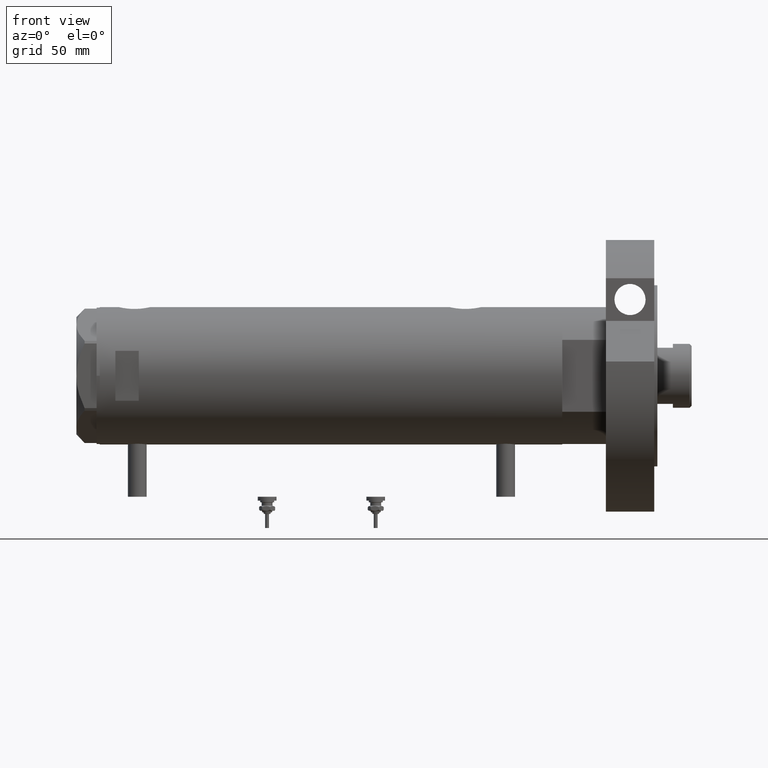
[diagram: clean part render]
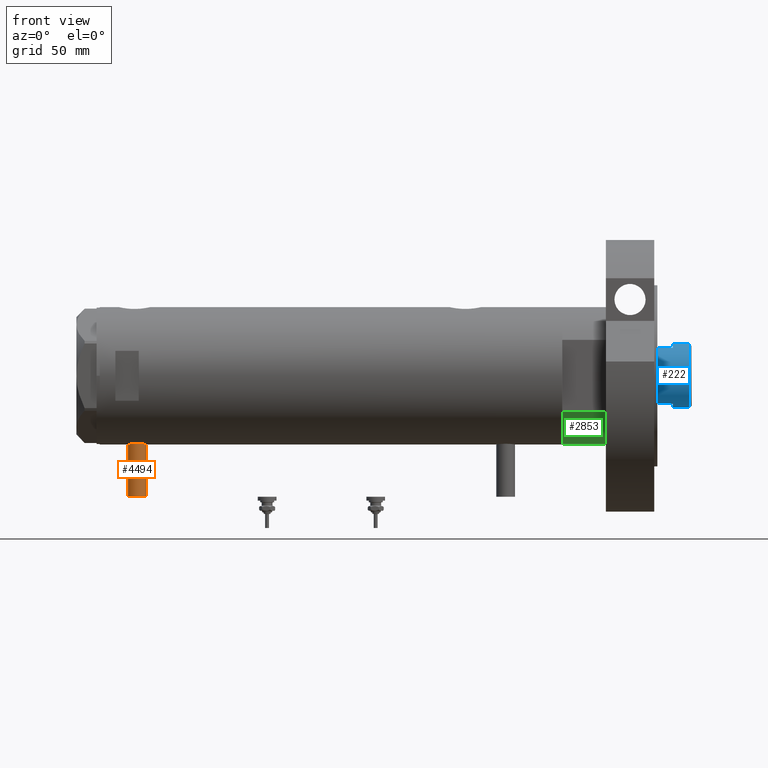
[diagram: same view with three faces highlighted in distinct colors, each labeled with its STEP entity id]
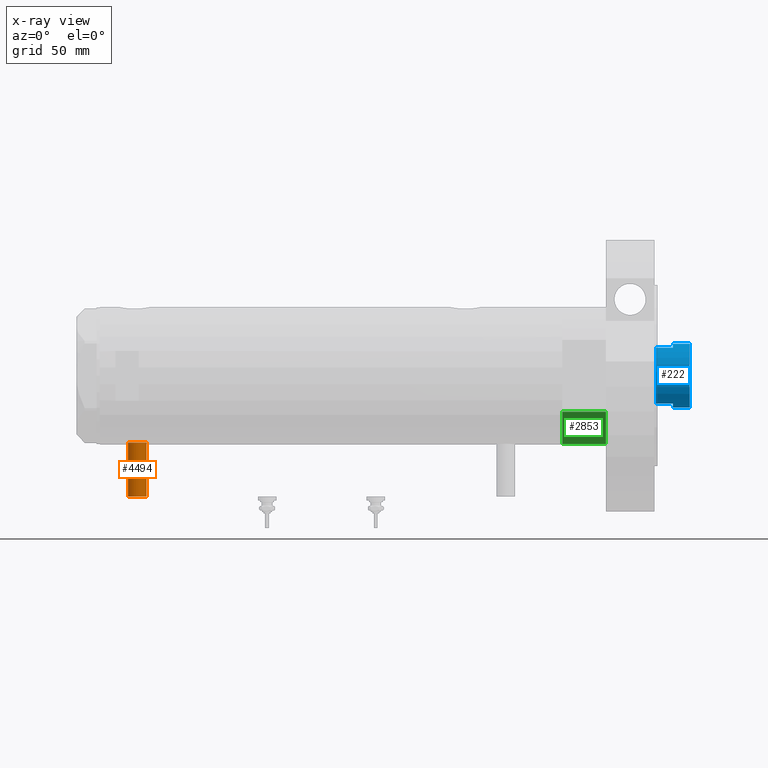
[diagram: x-ray of the same camera — body ghosted, the three highlighted faces saturated]
A machine part, front view with three faces highlighted in distinct colors.
The next image is the same camera in x-ray (body ghosted, the three faces saturated) — at least one of them is partly hidden behind the body in this view.
Their STEP definitions:

[orange] entity #4494 — the highlighted cylindrical surface (edge-blend (fillet) strip) has radius 6 mm, axis along (0, 0, 1).
#251 = AXIS2_PLACEMENT_3D ( 'NONE', #2872, #4598, #4523 ) ;
#655 = CARTESIAN_POINT ( 'NONE',  ( -77.50000000000000000, 0.000000000000000000, 118.1999999999999886 ) ) ;
#823 = DIRECTION ( 'NONE',  ( -1.000000000000000000, 0.000000000000000000, 0.000000000000000000 ) ) ;
#948 = DIRECTION ( 'NONE',  ( 1.000000000000000000, -0.000000000000000000, -0.000000000000000000 ) ) ;
#1014 = DIRECTION ( 'NONE',  ( -1.000000000000000000, 0.000000000000000000, 0.000000000000000000 ) ) ;
#1040 = FACE_OUTER_BOUND ( 'NONE', #3210, .T. ) ;
#1078 = VECTOR ( 'NONE', #948, 1000.000000000000000 ) ;
#1274 = VERTEX_POINT ( 'NONE', #655 ) ;
#1292 = DIRECTION ( 'NONE',  ( 1.000000000000000000, -0.000000000000000000, -0.000000000000000000 ) ) ;
#1332 = VECTOR ( 'NONE', #1292, 1000.000000000000000 ) ;
#1433 = CIRCLE ( 'NONE', #2409, 6.000000000000005329 ) ;
#1808 = CARTESIAN_POINT ( 'NONE',  ( -42.79999999999999716, 0.000000000000000000, 118.1999999999999886 ) ) ;
#2034 = VERTEX_POINT ( 'NONE', #7379 ) ;
#2093 = ORIENTED_EDGE ( 'NONE', *, *, #3212, .F. ) ;
#2404 = CARTESIAN_POINT ( 'NONE',  ( -77.50000000000000000, 0.000000000000000000, 118.1999999999999886 ) ) ;
#2409 = AXIS2_PLACEMENT_3D ( 'NONE', #4845, #823, #5002 ) ;
#2654 = AXIS2_PLACEMENT_3D ( 'NONE', #5124, #1014, #6914 ) ;
#2872 = CARTESIAN_POINT ( 'NONE',  ( -77.50000000000000000, 0.000000000000000000, 124.2000000000000028 ) ) ;
#2900 = EDGE_CURVE ( 'NONE', #6942, #2034, #5452, .T. ) ;
#3210 = EDGE_LOOP ( 'NONE', ( #6368, #2093, #6959, #4965 ) ) ;
#3212 = EDGE_CURVE ( 'NONE', #1274, #3876, #1433, .T. ) ;
#3876 = VERTEX_POINT ( 'NONE', #7083 ) ;
#4166 = EDGE_CURVE ( 'NONE', #3876, #2034, #6886, .T. ) ;
#4460 = CARTESIAN_POINT ( 'NONE',  ( -77.50000000000000000, 7.347880794884138472E-16, 130.2000000000000171 ) ) ;
#4494 = ADVANCED_FACE ( 'NONE', ( #1040 ), #7452, .T. ) ;
#4523 = DIRECTION ( 'NONE',  ( 0.000000000000000000, 0.000000000000000000, -1.000000000000000000 ) ) ;
#4598 = DIRECTION ( 'NONE',  ( 1.000000000000000000, -0.000000000000000000, -0.000000000000000000 ) ) ;
#4845 = CARTESIAN_POINT ( 'NONE',  ( -77.50000000000000000, 0.000000000000000000, 124.2000000000000028 ) ) ;
#4965 = ORIENTED_EDGE ( 'NONE', *, *, #2900, .T. ) ;
#5002 = DIRECTION ( 'NONE',  ( 0.000000000000000000, 0.000000000000000000, 1.000000000000000000 ) ) ;
#5006 = EDGE_CURVE ( 'NONE', #1274, #6942, #5263, .T. ) ;
#5124 = CARTESIAN_POINT ( 'NONE',  ( -42.79999999999999716, 0.000000000000000000, 124.2000000000000028 ) ) ;
#5263 = LINE ( 'NONE', #2404, #1332 ) ;
#5452 = CIRCLE ( 'NONE', #2654, 6.000000000000005329 ) ;
#6368 = ORIENTED_EDGE ( 'NONE', *, *, #4166, .F. ) ;
#6886 = LINE ( 'NONE', #4460, #1078 ) ;
#6914 = DIRECTION ( 'NONE',  ( 0.000000000000000000, 0.000000000000000000, 1.000000000000000000 ) ) ;
#6942 = VERTEX_POINT ( 'NONE', #1808 ) ;
#6959 = ORIENTED_EDGE ( 'NONE', *, *, #5006, .T. ) ;
#7083 = CARTESIAN_POINT ( 'NONE',  ( -77.50000000000000000, 7.347880794884152277E-16, 130.2000000000000171 ) ) ;
#7379 = CARTESIAN_POINT ( 'NONE',  ( -42.79999999999999716, 7.347880794884152277E-16, 130.2000000000000171 ) ) ;
#7452 = CYLINDRICAL_SURFACE ( 'NONE', #251, 6.000000000000019540 ) ;

[blue] entity #222 — the highlighted cylindrical surface (edge-blend (fillet) strip) has radius 20.5 mm, axis along (-1, -0, 0).
#88 = VERTEX_POINT ( 'NONE', #5768 ) ;
#222 = ADVANCED_FACE ( 'NONE', ( #3880 ), #2731, .T. ) ;
#339 = VECTOR ( 'NONE', #5512, 1000.000000000000000 ) ;
#386 = CIRCLE ( 'NONE', #1343, 20.50000000000000355 ) ;
#415 = CARTESIAN_POINT ( 'NONE',  ( -20.50000000000000355, 0.000000000000000000, 341.3000000000000114 ) ) ;
#544 = DIRECTION ( 'NONE',  ( 1.000000000000000000, 0.000000000000000000, 0.000000000000000000 ) ) ;
#777 = DIRECTION ( 'NONE',  ( 1.000000000000000000, 0.000000000000000000, 0.000000000000000000 ) ) ;
#886 = VERTEX_POINT ( 'NONE', #7463 ) ;
#1092 = EDGE_CURVE ( 'NONE', #1879, #886, #2514, .T. ) ;
#1142 = CARTESIAN_POINT ( 'NONE',  ( 20.50000000000000000, 2.510525938252074481E-15, 341.3000000000000114 ) ) ;
#1167 = EDGE_CURVE ( 'NONE', #1879, #6909, #4605, .T. ) ;
#1343 = AXIS2_PLACEMENT_3D ( 'NONE', #4004, #5759, #544 ) ;
#1550 = CIRCLE ( 'NONE', #5431, 20.50000000000000355 ) ;
#1805 = ORIENTED_EDGE ( 'NONE', *, *, #2062, .T. ) ;
#1879 = VERTEX_POINT ( 'NONE', #6219 ) ;
#2013 = EDGE_CURVE ( 'NONE', #6525, #6909, #7297, .T. ) ;
#2015 = ORIENTED_EDGE ( 'NONE', *, *, #2751, .T. ) ;
#2021 = DIRECTION ( 'NONE',  ( 0.000000000000000000, 0.000000000000000000, 1.000000000000000000 ) ) ;
#2062 = EDGE_CURVE ( 'NONE', #6525, #5394, #1550, .T. ) ;
#2082 = DIRECTION ( 'NONE',  ( -0.000000000000000000, -0.000000000000000000, -1.000000000000000000 ) ) ;
#2344 = ORIENTED_EDGE ( 'NONE', *, *, #2013, .F. ) ;
#2514 = LINE ( 'NONE', #3657, #3618 ) ;
#2535 = EDGE_CURVE ( 'NONE', #3021, #3798, #5561, .T. ) ;
#2587 = ORIENTED_EDGE ( 'NONE', *, *, #5945, .T. ) ;
#2731 = CYLINDRICAL_SURFACE ( 'NONE', #7532, 20.50000000000000355 ) ;
#2751 = EDGE_CURVE ( 'NONE', #88, #3021, #6432, .T. ) ;
#2768 = DIRECTION ( 'NONE',  ( -0.000000000000000000, -0.000000000000000000, -1.000000000000000000 ) ) ;
#3021 = VERTEX_POINT ( 'NONE', #6475 ) ;
#3046 = DIRECTION ( 'NONE',  ( 1.000000000000000000, 0.000000000000000000, 0.000000000000000000 ) ) ;
#3217 = DIRECTION ( 'NONE',  ( 0.000000000000000000, 0.000000000000000000, -1.000000000000000000 ) ) ;
#3339 = LINE ( 'NONE', #415, #3788 ) ;
#3618 = VECTOR ( 'NONE', #5532, 1000.000000000000000 ) ;
#3657 = CARTESIAN_POINT ( 'NONE',  ( 17.97852886083843060, -9.849999999999994316, 341.3000000000000114 ) ) ;
#3716 = DIRECTION ( 'NONE',  ( -0.000000000000000000, -0.000000000000000000, -1.000000000000000000 ) ) ;
#3749 = CARTESIAN_POINT ( 'NONE',  ( 20.50000000000000355, 2.510525938252074481E-15, 341.3000000000000114 ) ) ;
#3788 = VECTOR ( 'NONE', #2082, 1000.000000000000000 ) ;
#3798 = VERTEX_POINT ( 'NONE', #5216 ) ;
#3872 = VECTOR ( 'NONE', #2768, 1000.000000000000000 ) ;
#3880 = FACE_OUTER_BOUND ( 'NONE', #7312, .T. ) ;
#3944 = DIRECTION ( 'NONE',  ( 0.000000000000000000, 0.000000000000000000, 1.000000000000000000 ) ) ;
#4004 = CARTESIAN_POINT ( 'NONE',  ( 0.000000000000000000, 0.000000000000000000, 330.2999999999999545 ) ) ;
#4052 = ORIENTED_EDGE ( 'NONE', *, *, #1167, .T. ) ;
#4483 = AXIS2_PLACEMENT_3D ( 'NONE', #7280, #2021, #777 ) ;
#4511 = CARTESIAN_POINT ( 'NONE',  ( 0.000000000000000000, 0.000000000000000000, 341.3000000000000114 ) ) ;
#4605 = CIRCLE ( 'NONE', #4483, 20.50000000000000000 ) ;
#5041 = CARTESIAN_POINT ( 'NONE',  ( 0.000000000000000000, 0.000000000000000000, 351.8999999999999773 ) ) ;
#5046 = CARTESIAN_POINT ( 'NONE',  ( 0.000000000000000000, 0.000000000000000000, 341.3000000000000114 ) ) ;
#5216 = CARTESIAN_POINT ( 'NONE',  ( -17.97852886083842350, -9.850000000000029843, 330.2999999999999545 ) ) ;
#5386 = ORIENTED_EDGE ( 'NONE', *, *, #2535, .T. ) ;
#5394 = VERTEX_POINT ( 'NONE', #6847 ) ;
#5411 = ORIENTED_EDGE ( 'NONE', *, *, #6154, .T. ) ;
#5431 = AXIS2_PLACEMENT_3D ( 'NONE', #5041, #3217, #5552 ) ;
#5512 = DIRECTION ( 'NONE',  ( -0.000000000000000000, -0.000000000000000000, -1.000000000000000000 ) ) ;
#5532 = DIRECTION ( 'NONE',  ( -0.000000000000000000, -0.000000000000000000, -1.000000000000000000 ) ) ;
#5552 = DIRECTION ( 'NONE',  ( 1.000000000000000000, 0.000000000000000000, 0.000000000000000000 ) ) ;
#5561 = LINE ( 'NONE', #5678, #3872 ) ;
#5678 = CARTESIAN_POINT ( 'NONE',  ( -17.97852886083842350, -9.850000000000001421, 341.3000000000000114 ) ) ;
#5759 = DIRECTION ( 'NONE',  ( 0.000000000000000000, 0.000000000000000000, 1.000000000000000000 ) ) ;
#5768 = CARTESIAN_POINT ( 'NONE',  ( -20.50000000000000000, 0.000000000000000000, 341.3000000000000114 ) ) ;
#5945 = EDGE_CURVE ( 'NONE', #3798, #886, #386, .T. ) ;
#6104 = ORIENTED_EDGE ( 'NONE', *, *, #1092, .F. ) ;
#6154 = EDGE_CURVE ( 'NONE', #5394, #88, #3339, .T. ) ;
#6219 = CARTESIAN_POINT ( 'NONE',  ( 17.97852886083843060, -9.849999999999994316, 341.3000000000000114 ) ) ;
#6432 = CIRCLE ( 'NONE', #7427, 20.50000000000000000 ) ;
#6475 = CARTESIAN_POINT ( 'NONE',  ( -17.97852886083842705, -9.849999999999996092, 341.3000000000000114 ) ) ;
#6525 = VERTEX_POINT ( 'NONE', #7357 ) ;
#6847 = CARTESIAN_POINT ( 'NONE',  ( -20.50000000000000355, 0.000000000000000000, 351.8999999999999773 ) ) ;
#6909 = VERTEX_POINT ( 'NONE', #1142 ) ;
#7267 = DIRECTION ( 'NONE',  ( -1.000000000000000000, 0.000000000000000000, 0.000000000000000000 ) ) ;
#7280 = CARTESIAN_POINT ( 'NONE',  ( 0.000000000000000000, 0.000000000000000000, 341.3000000000000114 ) ) ;
#7297 = LINE ( 'NONE', #3749, #339 ) ;
#7312 = EDGE_LOOP ( 'NONE', ( #2344, #1805, #5411, #2015, #5386, #2587, #6104, #4052 ) ) ;
#7357 = CARTESIAN_POINT ( 'NONE',  ( 20.50000000000000355, 2.510525938252074481E-15, 351.8999999999999773 ) ) ;
#7427 = AXIS2_PLACEMENT_3D ( 'NONE', #4511, #3944, #3046 ) ;
#7463 = CARTESIAN_POINT ( 'NONE',  ( 17.97852886083843060, -9.850000000000019185, 330.2999999999999545 ) ) ;
#7532 = AXIS2_PLACEMENT_3D ( 'NONE', #5046, #3716, #7267 ) ;

[green] entity #2853 — the highlighted cylindrical surface (partial cylindrical patch) has radius 44 mm, axis along (-1, -0, 0).
#12 = ORIENTED_EDGE ( 'NONE', *, *, #6402, .T. ) ;
#118 = AXIS2_PLACEMENT_3D ( 'NONE', #5199, #1086, #5087 ) ;
#300 = CARTESIAN_POINT ( 'NONE',  ( 23.01629857296780557, 37.50000000000000000, 0.000000000000000000 ) ) ;
#867 = VERTEX_POINT ( 'NONE', #5680 ) ;
#1086 = DIRECTION ( 'NONE',  ( -0.000000000000000000, -0.000000000000000000, -1.000000000000000000 ) ) ;
#1470 = VERTEX_POINT ( 'NONE', #6353 ) ;
#1743 = FACE_OUTER_BOUND ( 'NONE', #3146, .T. ) ;
#1899 = ORIENTED_EDGE ( 'NONE', *, *, #7546, .F. ) ;
#2097 = ORIENTED_EDGE ( 'NONE', *, *, #6634, .T. ) ;
#2200 = CYLINDRICAL_SURFACE ( 'NONE', #118, 44.00000000000000000 ) ;
#2853 = ADVANCED_FACE ( 'NONE', ( #1743 ), #2200, .T. ) ;
#2929 = AXIS2_PLACEMENT_3D ( 'NONE', #7278, #6141, #3117 ) ;
#3117 = DIRECTION ( 'NONE',  ( 1.000000000000000000, 0.000000000000000000, 0.000000000000000000 ) ) ;
#3146 = EDGE_LOOP ( 'NONE', ( #5413, #1899, #12, #2097 ) ) ;
#3304 = AXIS2_PLACEMENT_3D ( 'NONE', #5156, #5334, #3621 ) ;
#3621 = DIRECTION ( 'NONE',  ( 1.000000000000000000, 0.000000000000000000, 0.000000000000000000 ) ) ;
#3727 = DIRECTION ( 'NONE',  ( -0.000000000000000000, -0.000000000000000000, 1.000000000000000000 ) ) ;
#4170 = VECTOR ( 'NONE', #4314, 1000.000000000000000 ) ;
#4314 = DIRECTION ( 'NONE',  ( -0.000000000000000000, -0.000000000000000000, 1.000000000000000000 ) ) ;
#4831 = LINE ( 'NONE', #7318, #4170 ) ;
#5087 = DIRECTION ( 'NONE',  ( -1.000000000000000000, 0.000000000000000000, 0.000000000000000000 ) ) ;
#5156 = CARTESIAN_POINT ( 'NONE',  ( 0.000000000000000000, 0.000000000000000000, 0.000000000000000000 ) ) ;
#5199 = CARTESIAN_POINT ( 'NONE',  ( 0.000000000000000000, 0.000000000000000000, 27.89999999999999858 ) ) ;
#5334 = DIRECTION ( 'NONE',  ( 0.000000000000000000, 0.000000000000000000, 1.000000000000000000 ) ) ;
#5413 = ORIENTED_EDGE ( 'NONE', *, *, #7418, .F. ) ;
#5530 = LINE ( 'NONE', #6029, #6358 ) ;
#5680 = CARTESIAN_POINT ( 'NONE',  ( 23.01629857296780557, -37.50000000000000000, 0.000000000000000000 ) ) ;
#5689 = VERTEX_POINT ( 'NONE', #6756 ) ;
#6029 = CARTESIAN_POINT ( 'NONE',  ( 23.01629857296780557, -37.50000000000000000, 0.000000000000000000 ) ) ;
#6074 = VERTEX_POINT ( 'NONE', #300 ) ;
#6141 = DIRECTION ( 'NONE',  ( 0.000000000000000000, 0.000000000000000000, 1.000000000000000000 ) ) ;
#6227 = CIRCLE ( 'NONE', #2929, 44.00000000000000000 ) ;
#6236 = CIRCLE ( 'NONE', #3304, 44.00000000000000000 ) ;
#6353 = CARTESIAN_POINT ( 'NONE',  ( 23.01629857296780557, -37.50000000000000000, 27.89999999999999858 ) ) ;
#6358 = VECTOR ( 'NONE', #3727, 1000.000000000000000 ) ;
#6402 = EDGE_CURVE ( 'NONE', #867, #6074, #6236, .T. ) ;
#6634 = EDGE_CURVE ( 'NONE', #6074, #5689, #4831, .T. ) ;
#6756 = CARTESIAN_POINT ( 'NONE',  ( 23.01629857296780557, 37.50000000000000000, 27.89999999999999858 ) ) ;
#7278 = CARTESIAN_POINT ( 'NONE',  ( 0.000000000000000000, 0.000000000000000000, 27.89999999999999858 ) ) ;
#7318 = CARTESIAN_POINT ( 'NONE',  ( 23.01629857296780557, 37.50000000000000000, 0.000000000000000000 ) ) ;
#7418 = EDGE_CURVE ( 'NONE', #1470, #5689, #6227, .T. ) ;
#7546 = EDGE_CURVE ( 'NONE', #867, #1470, #5530, .T. ) ;